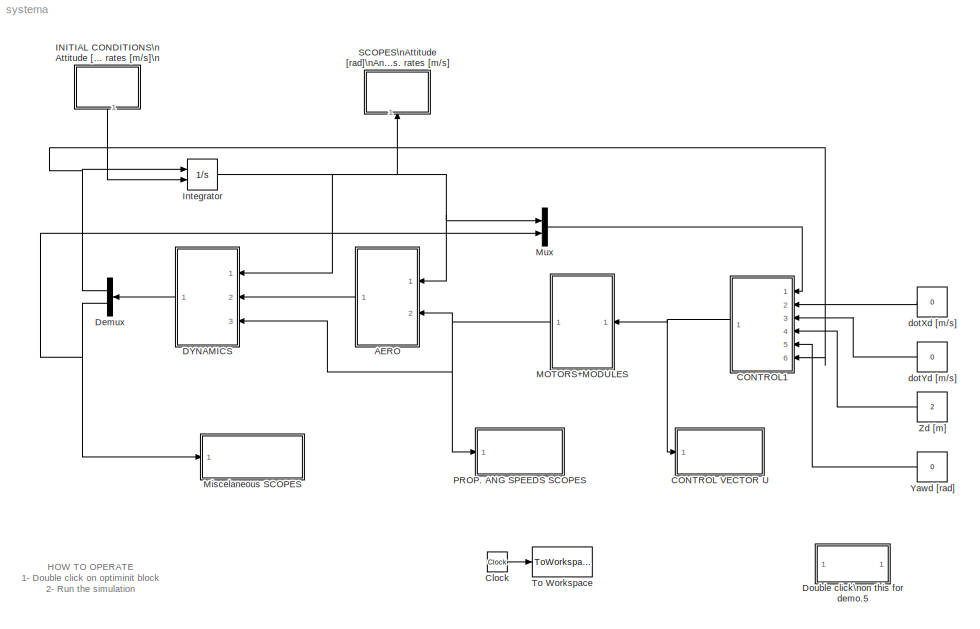
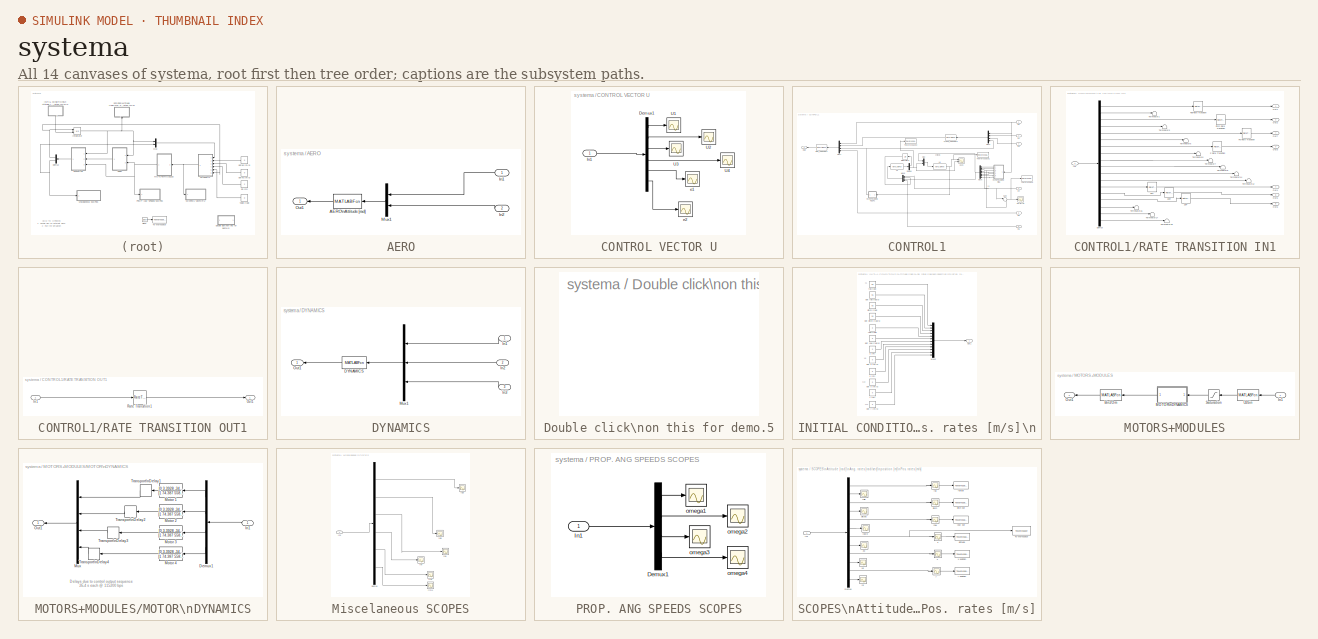
[diagram: thumbnail index - all 14 canvases of the model, root first then tree order]
MODEL systema
KIND model
BLOCK [SubSystem] AERO
  FunctionWithSeparateData = off
  MaskHideContents = off
  MinAlgLoopOccurrences = off
  Opaque = off
  Ports = [2, 1]
  PropExecContextOutsideSubsystem = off
  RTWSystemCode = Auto
  RequestExecContextInheritance = off
  SID = 1
BLOCK [MATLABFcn] AERO/AERO\nAttitude [rad]
  MATLABFcn = aero
  OutputDimensions = 24
  Ports = [1, 1]
  SID = 4
BLOCK [Inport] AERO/In1
  IconDisplay = Port number
  SID = 2
BLOCK [Inport] AERO/In2
  IconDisplay = Port number
  Port = 2
  SID = 3
BLOCK [Mux] AERO/Mux1
  DisplayOption = bar
  Inputs = 2
  Ports = [2, 1]
  SID = 5
BLOCK [Outport] AERO/Out1
  IconDisplay = Port number
  SID = 6
BLOCK [SubSystem] CONTROL VECTOR U
  FunctionWithSeparateData = off
  MaskHideContents = off
  MinAlgLoopOccurrences = off
  Opaque = off
  Ports = [1]
  PropExecContextOutsideSubsystem = off
  RTWSystemCode = Auto
  RequestExecContextInheritance = off
  SID = 42
BLOCK [Demux] CONTROL VECTOR U/Demux1
  Outputs = 6
  Ports = [1, 6]
  SID = 44
BLOCK [Inport] CONTROL VECTOR U/In1
  IconDisplay = Port number
  SID = 43
BLOCK [Scope] CONTROL VECTOR U/U1
  DataFormat = StructureWithTime
  Floating = off
  LimitDataPoints = off
  NumInputPorts = 1
  Ports = [1]
  SID = 45
  SampleTime = 0
  SaveName = ScopeData7
  ShowLegends = off
  TimeRange = 0.2082448343844286
  YMax = 5.84545
  YMin = 5.84505
  ZoomMode = xonly
BLOCK [Scope] CONTROL VECTOR U/U2
  DataFormat = StructureWithTime
  Floating = off
  LimitDataPoints = off
  NumInputPorts = 1
  Ports = [1]
  SID = 46
  SampleTime = 0
  SaveName = ScopeData8
  ShowLegends = off
  YMax = 0.4
  YMin = -0.6
  ZoomMode = xonly
BLOCK [Scope] CONTROL VECTOR U/U3
  DataFormat = StructureWithTime
  Floating = off
  LimitDataPoints = off
  NumInputPorts = 1
  Ports = [1]
  SID = 47
  SampleTime = 0
  SaveName = ScopeData9
  ShowLegends = off
  YMax = 0.35
  YMin = -0.65
BLOCK [Scope] CONTROL VECTOR U/U4
  DataFormat = StructureWithTime
  Floating = off
  LimitDataPoints = off
  NumInputPorts = 1
  Ports = [1]
  SID = 48
  SampleTime = 0
  SaveName = ScopeData14
  ShowLegends = off
  YMax = 150
  YMin = 0
BLOCK [Scope] CONTROL VECTOR U/e1
  DataFormat = StructureWithTime
  Floating = off
  LimitDataPoints = off
  NumInputPorts = 1
  Ports = [1]
  SID = 49
  SampleTime = 0
  SaveName = ScopeData11
  ShowLegends = off
  YMax = 150
  YMin = 0
BLOCK [Scope] CONTROL VECTOR U/e2
  DataFormat = StructureWithTime
  Floating = off
  LimitDataPoints = off
  NumInputPorts = 1
  Ports = [1]
  SID = 50
  SampleTime = 0
  SaveName = ScopeData12
  ShowLegends = off
  YMax = 150
  YMin = 0
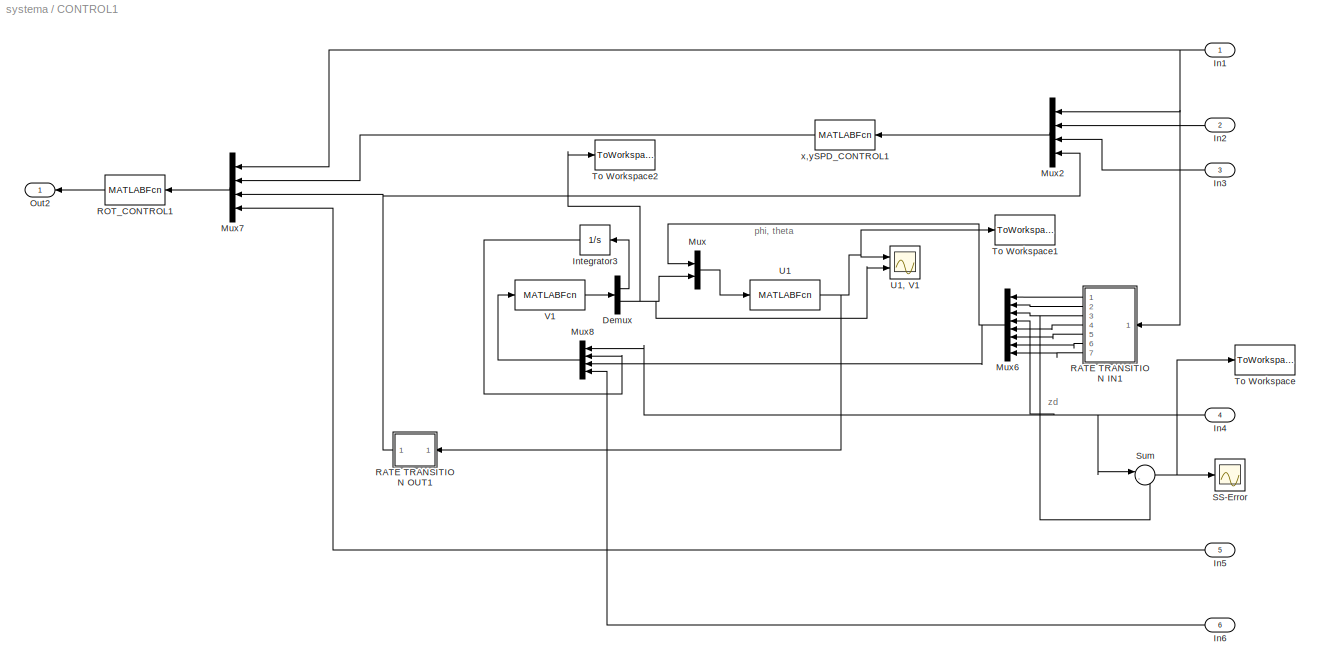
BLOCK [SubSystem] CONTROL1
  FunctionWithSeparateData = off
  MaskHideContents = off
  MinAlgLoopOccurrences = off
  Opaque = off
  Ports = [6, 1]
  PropExecContextOutsideSubsystem = off
  RTWSystemCode = Auto
  RequestExecContextInheritance = off
  SID = 242
BLOCK [Demux] CONTROL1/Demux
  DisplayOption = bar
  Outputs = 2
  Ports = [1, 2]
  SID = 291
BLOCK [Inport] CONTROL1/In1
  IconDisplay = Port number
  SID = 243
BLOCK [Inport] CONTROL1/In2
  IconDisplay = Port number
  Port = 2
  SID = 244
BLOCK [Inport] CONTROL1/In3
  IconDisplay = Port number
  Port = 3
  SID = 245
BLOCK [Inport] CONTROL1/In4
  IconDisplay = Port number
  Port = 4
  SID = 246
BLOCK [Inport] CONTROL1/In5
  IconDisplay = Port number
  Port = 5
  SID = 247
BLOCK [Inport] CONTROL1/In6
  IconDisplay = Port number
  Port = 6
  SID = 317
BLOCK [Integrator] CONTROL1/Integrator3
  Ports = [1, 1]
  SID = 289
BLOCK [Mux] CONTROL1/Mux
  DisplayOption = bar
  Inputs = 2
  Ports = [2, 1]
  SID = 250
BLOCK [Mux] CONTROL1/Mux2
  DisplayOption = bar
  Ports = [4, 1]
  SID = 251
BLOCK [Mux] CONTROL1/Mux6
  DisplayOption = bar
  Inputs = 8
  Ports = [8, 1]
  SID = 253
BLOCK [Mux] CONTROL1/Mux7
  DisplayOption = bar
  Ports = [4, 1]
  SID = 254
BLOCK [Mux] CONTROL1/Mux8
  DisplayOption = bar
  Ports = [4, 1]
  SID = 255
BLOCK [Outport] CONTROL1/Out2
  IconDisplay = Port number
  SID = 283
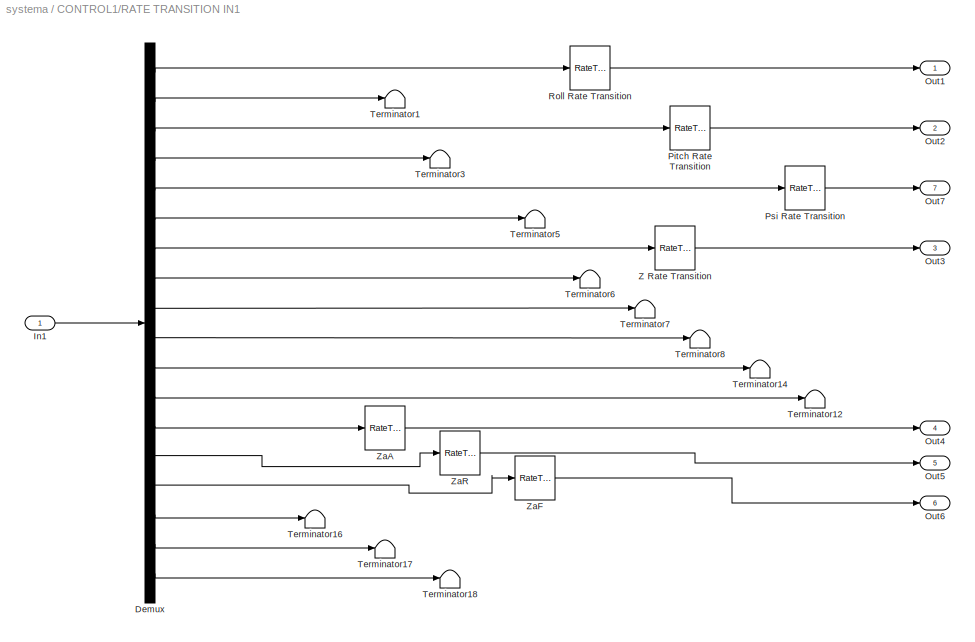
BLOCK [SubSystem] CONTROL1/RATE TRANSITION IN1
  FunctionWithSeparateData = off
  MaskHideContents = off
  MinAlgLoopOccurrences = off
  Opaque = off
  Ports = [1, 7]
  PropExecContextOutsideSubsystem = off
  RTWSystemCode = Auto
  RequestExecContextInheritance = off
  SID = 257
BLOCK [Demux] CONTROL1/RATE TRANSITION IN1/Demux
  Outputs = 18
  Ports = [1, 18]
  SID = 259
BLOCK [Inport] CONTROL1/RATE TRANSITION IN1/In1
  IconDisplay = Port number
  SID = 258
BLOCK [Outport] CONTROL1/RATE TRANSITION IN1/Out1
  IconDisplay = Port number
  SID = 272
BLOCK [Outport] CONTROL1/RATE TRANSITION IN1/Out2
  IconDisplay = Port number
  Port = 2
  SID = 273
BLOCK [Outport] CONTROL1/RATE TRANSITION IN1/Out3
  IconDisplay = Port number
  Port = 3
  SID = 274
BLOCK [Outport] CONTROL1/RATE TRANSITION IN1/Out4
  IconDisplay = Port number
  Port = 4
  SID = 297
BLOCK [Outport] CONTROL1/RATE TRANSITION IN1/Out5
  IconDisplay = Port number
  Port = 5
  SID = 300
BLOCK [Outport] CONTROL1/RATE TRANSITION IN1/Out6
  IconDisplay = Port number
  Port = 6
  SID = 302
BLOCK [Outport] CONTROL1/RATE TRANSITION IN1/Out7
  IconDisplay = Port number
  Port = 7
  SID = 316
BLOCK [RateTransition] CONTROL1/RATE TRANSITION IN1/Pitch Rate Transition
  Deterministic = off
  SID = 260
BLOCK [RateTransition] CONTROL1/RATE TRANSITION IN1/Psi Rate Transition
  Deterministic = off
  SID = 315
BLOCK [RateTransition] CONTROL1/RATE TRANSITION IN1/Roll Rate Transition
  Deterministic = off
  SID = 261
BLOCK [Terminator] CONTROL1/RATE TRANSITION IN1/Terminator1
  SID = 262
BLOCK [Terminator] CONTROL1/RATE TRANSITION IN1/Terminator12
  SID = 263
BLOCK [Terminator] CONTROL1/RATE TRANSITION IN1/Terminator14
  SID = 264
BLOCK [Terminator] CONTROL1/RATE TRANSITION IN1/Terminator16
  SID = 303
BLOCK [Terminator] CONTROL1/RATE TRANSITION IN1/Terminator17
  SID = 304
BLOCK [Terminator] CONTROL1/RATE TRANSITION IN1/Terminator18
  SID = 305
BLOCK [Terminator] CONTROL1/RATE TRANSITION IN1/Terminator3
  SID = 265
BLOCK [Terminator] CONTROL1/RATE TRANSITION IN1/Terminator5
  SID = 267
BLOCK [Terminator] CONTROL1/RATE TRANSITION IN1/Terminator6
  SID = 268
BLOCK [Terminator] CONTROL1/RATE TRANSITION IN1/Terminator7
  SID = 269
BLOCK [Terminator] CONTROL1/RATE TRANSITION IN1/Terminator8
  SID = 270
BLOCK [RateTransition] CONTROL1/RATE TRANSITION IN1/Z Rate Transition
  Deterministic = off
  SID = 271
BLOCK [RateTransition] CONTROL1/RATE TRANSITION IN1/ZaA
  Deterministic = off
  SID = 296
BLOCK [RateTransition] CONTROL1/RATE TRANSITION IN1/ZaF
  Deterministic = off
  SID = 301
BLOCK [RateTransition] CONTROL1/RATE TRANSITION IN1/ZaR
  Deterministic = off
  SID = 299
BLOCK [SubSystem] CONTROL1/RATE TRANSITION OUT1
  FunctionWithSeparateData = off
  MaskHideContents = off
  MinAlgLoopOccurrences = off
  Opaque = off
  Ports = [1, 1]
  PropExecContextOutsideSubsystem = off
  RTWSystemCode = Auto
  RequestExecContextInheritance = off
  SID = 275
BLOCK [Inport] CONTROL1/RATE TRANSITION OUT1/In1
  IconDisplay = Port number
  SID = 276
BLOCK [Outport] CONTROL1/RATE TRANSITION OUT1/Out1
  IconDisplay = Port number
  SID = 278
BLOCK [RateTransition] CONTROL1/RATE TRANSITION OUT1/Rate Transition1
  Deterministic = off
  SID = 277
BLOCK [MATLABFcn] CONTROL1/ROT_CONTROL1
  MATLABFcn = back_rot_control
  OutputDimensions = 6
  Ports = [1, 1]
  SID = 279
BLOCK [Scope] CONTROL1/SS-Error
  DataFormat = StructureWithTime
  Floating = off
  NumInputPorts = 1
  Ports = [1]
  SID = 310
  SampleTime = 0
  SaveName = ScopeData6
  ShowLegends = off
  TimeRange = 15
  YMax = 0
  YMin = -0.375
  ZoomMode = yonly
BLOCK [Sum] CONTROL1/Sum
  IconShape = round
  InputSameDT = off
  Inputs = |-+
  OutDataTypeStr = Inherit: Inherit via internal rule
  Ports = [2, 1]
  SID = 309
  SaturateOnIntegerOverflow = off
BLOCK [ToWorkspace] CONTROL1/To Workspace
  MaxDataPoints = inf
  Ports = [1]
  SID = 311
  SampleTime = -1
  VariableName = Ez
BLOCK [ToWorkspace] CONTROL1/To Workspace1
  MaxDataPoints = inf
  Ports = [1]
  SID = 312
  SampleTime = -1
  VariableName = U1
BLOCK [ToWorkspace] CONTROL1/To Workspace2
  MaxDataPoints = inf
  Ports = [1]
  SID = 313
  SampleTime = -1
  VariableName = V1
BLOCK [MATLABFcn] CONTROL1/U1
  MATLABFcn = U1
  OutputDimensions = 1
  Ports = [1, 1]
  SID = 280
BLOCK [Scope] CONTROL1/U1, V1
  DataFormat = StructureWithTime
  Floating = off
  NumInputPorts = 2
  Ports = [2]
  SID = 292
  SampleTime = 0
  SaveName = ScopeData4
  ShowLegends = off
  TimeRange = 15
  YMax = 5.85~1.25
  YMin = 5.575~0.75
  ZoomMode = yonly
BLOCK [MATLABFcn] CONTROL1/V1
  MATLABFcn = V1
  OutputDimensions = 2
  Ports = [1, 1]
  SID = 281
BLOCK [MATLABFcn] CONTROL1/x,ySPD_CONTROL1
  MATLABFcn = spd_control
  OutputDimensions = 2
  Ports = [1, 1]
  SID = 282
BLOCK [Clock] Clock
  SID = 51
BLOCK [SubSystem] DYNAMICS
  FunctionWithSeparateData = off
  MaskHideContents = off
  MinAlgLoopOccurrences = off
  Opaque = off
  Ports = [3, 1]
  PropExecContextOutsideSubsystem = off
  RTWSystemCode = Auto
  RequestExecContextInheritance = off
  SID = 102
BLOCK [MATLABFcn] DYNAMICS/DYNAMICS
  MATLABFcn = dinamica
  OutputDimensions = 18
  Ports = [1, 1]
  SID = 106
BLOCK [Inport] DYNAMICS/In1
  IconDisplay = Port number
  SID = 103
BLOCK [Inport] DYNAMICS/In2
  IconDisplay = Port number
  Port = 2
  SID = 104
BLOCK [Inport] DYNAMICS/In3
  IconDisplay = Port number
  Port = 3
  SID = 105
BLOCK [Mux] DYNAMICS/Mux1
  DisplayOption = bar
  Inputs = 3
  Ports = [3, 1]
  SID = 107
BLOCK [Outport] DYNAMICS/Out1
  IconDisplay = Port number
  SID = 108
BLOCK [Demux] Demux
  Outputs = 2
  Ports = [1, 2]
  SID = 109
BLOCK [SubSystem] Double click\non this for demo.5
  FunctionWithSeparateData = off
  MaskHideContents = off
  MinAlgLoopOccurrences = off
  Opaque = off
  OpenFcn = optsiminit
  Ports = []
  PropExecContextOutsideSubsystem = off
  RTWSystemCode = Auto
  RequestExecContextInheritance = off
  SID = 110
BLOCK [SubSystem] INITIAL CONDITIONS\nAttitude [rad]\nAng. rates [rad//sec]\nposition [m]\nPos. rates [m//s]\n
  FunctionWithSeparateData = off
  MaskHideContents = off
  MinAlgLoopOccurrences = off
  Opaque = off
  Ports = [0, 1]
  PropExecContextOutsideSubsystem = off
  RTWSystemCode = Auto
  RequestExecContextInheritance = off
  SID = 133
BLOCK [Mux] INITIAL CONDITIONS\nAttitude [rad]\nAng. rates [rad//sec]\nposition [m]\nPos. rates [m//s]\n/Mux2
  DisplayOption = bar
  Inputs = 12
  Ports = [12, 1]
  SID = 134
BLOCK [Outport] INITIAL CONDITIONS\nAttitude [rad]\nAng. rates [rad//sec]\nposition [m]\nPos. rates [m//s]\n/Out1
  IconDisplay = Port number
  SID = 147
BLOCK [Constant] INITIAL CONDITIONS\nAttitude [rad]\nAng. rates [rad//sec]\nposition [m]\nPos. rates [m//s]\n/dot pitch [rad//s]
  SID = 135
  Value = 0.5
BLOCK [Constant] INITIAL CONDITIONS\nAttitude [rad]\nAng. rates [rad//sec]\nposition [m]\nPos. rates [m//s]\n/dot roll [rad//s]
  SID = 136
  Value = 0.5
BLOCK [Constant] INITIAL CONDITIONS\nAttitude [rad]\nAng. rates [rad//sec]\nposition [m]\nPos. rates [m//s]\n/dot x [m//s]
  SID = 137
  Value = 0
BLOCK [Constant] INITIAL CONDITIONS\nAttitude [rad]\nAng. rates [rad//sec]\nposition [m]\nPos. rates [m//s]\n/dot y [m//s]
  SID = 138
  Value = 0
BLOCK [Constant] INITIAL CONDITIONS\nAttitude [rad]\nAng. rates [rad//sec]\nposition [m]\nPos. rates [m//s]\n/dot yaw [rad//s]
  SID = 139
  Value = 0
BLOCK [Constant] INITIAL CONDITIONS\nAttitude [rad]\nAng. rates [rad//sec]\nposition [m]\nPos. rates [m//s]\n/dot z  [m//s]
  SID = 140
  Value = 0
BLOCK [Constant] INITIAL CONDITIONS\nAttitude [rad]\nAng. rates [rad//sec]\nposition [m]\nPos. rates [m//s]\n/pitch [rad]
  SID = 141
  Value = 0.5
BLOCK [Constant] INITIAL CONDITIONS\nAttitude [rad]\nAng. rates [rad//sec]\nposition [m]\nPos. rates [m//s]\n/roll [rad]
  SID = 142
  Value = 0.5
BLOCK [Constant] INITIAL CONDITIONS\nAttitude [rad]\nAng. rates [rad//sec]\nposition [m]\nPos. rates [m//s]\n/x [m]
  SID = 143
  Value = 0
BLOCK [Constant] INITIAL CONDITIONS\nAttitude [rad]\nAng. rates [rad//sec]\nposition [m]\nPos. rates [m//s]\n/y [m]
  SID = 144
  Value = 0
BLOCK [Constant] INITIAL CONDITIONS\nAttitude [rad]\nAng. rates [rad//sec]\nposition [m]\nPos. rates [m//s]\n/yaw [rad]
  SID = 145
  Value = 0
BLOCK [Constant] INITIAL CONDITIONS\nAttitude [rad]\nAng. rates [rad//sec]\nposition [m]\nPos. rates [m//s]\n/z [m]
  SID = 146
  Value = 0
BLOCK [Integrator] Integrator
  InitialConditionSource = external
  Ports = [2, 1]
  SID = 152
BLOCK [SubSystem] MOTORS+MODULES
  FunctionWithSeparateData = off
  MaskHideContents = off
  MinAlgLoopOccurrences = off
  Opaque = off
  Ports = [1, 1]
  PropExecContextOutsideSubsystem = off
  RTWSystemCode = Auto
  RequestExecContextInheritance = off
  SID = 153
BLOCK [MATLABFcn] MOTORS+MODULES/Bin2Om
  MATLABFcn = bin2Om
  OutputDimensions = 4
  OutputSignalType = real
  Ports = [1, 1]
  SID = 155
BLOCK [Inport] MOTORS+MODULES/In1
  IconDisplay = Port number
  SID = 154
BLOCK [SubSystem] MOTORS+MODULES/MOTOR\nDYNAMICS
  FunctionWithSeparateData = off
  MaskHideContents = off
  MinAlgLoopOccurrences = off
  Opaque = off
  Ports = [1, 1]
  PropExecContextOutsideSubsystem = off
  RTWSystemCode = Auto
  RequestExecContextInheritance = off
  SID = 156
BLOCK [Demux] MOTORS+MODULES/MOTOR\nDYNAMICS/Demux1
  Ports = [1, 4]
  SID = 158
BLOCK [Inport] MOTORS+MODULES/MOTOR\nDYNAMICS/In1
  IconDisplay = Port number
  SID = 157
BLOCK [TransferFcn] MOTORS+MODULES/MOTOR\nDYNAMICS/Motor 1
  Denominator = [1 74.387 5589.7 42107]
  Numerator = [0 3.3928 -340.09 39451]
  SID = 159
BLOCK [TransferFcn] MOTORS+MODULES/MOTOR\nDYNAMICS/Motor 2
  Denominator = [1 74.387 5589.7 42107]
  Numerator = [0 3.3928 -340.09 39451]
  SID = 160
BLOCK [TransferFcn] MOTORS+MODULES/MOTOR\nDYNAMICS/Motor 3
  Denominator = [1 74.387 5589.7 42107]
  Numerator = [0 3.3928 -340.09 39451]
  SID = 161
BLOCK [TransferFcn] MOTORS+MODULES/MOTOR\nDYNAMICS/Motor 4
  Denominator = [1 74.387 5589.7 42107]
  Numerator = [0 3.3928 -340.09 39451]
  SID = 162
BLOCK [Mux] MOTORS+MODULES/MOTOR\nDYNAMICS/Mux
  DisplayOption = bar
  Ports = [4, 1]
  SID = 163
BLOCK [Outport] MOTORS+MODULES/MOTOR\nDYNAMICS/Out1
  IconDisplay = Port number
  SID = 168
BLOCK [TransportDelay] MOTORS+MODULES/MOTOR\nDYNAMICS/Transport\nDelay1
  DelayTime = 2E-4
  Ports = [1, 1]
  SID = 164
BLOCK [TransportDelay] MOTORS+MODULES/MOTOR\nDYNAMICS/Transport\nDelay2
  DelayTime = 4E-4
  Ports = [1, 1]
  SID = 165
BLOCK [TransportDelay] MOTORS+MODULES/MOTOR\nDYNAMICS/Transport\nDelay3
  DelayTime = 6E-4
  Ports = [1, 1]
  SID = 166
BLOCK [TransportDelay] MOTORS+MODULES/MOTOR\nDYNAMICS/Transport\nDelay4
  DelayTime = 8E-4
  Ports = [1, 1]
  SID = 167
BLOCK [Outport] MOTORS+MODULES/Out1
  IconDisplay = Port number
  SID = 172
BLOCK [Saturate] MOTORS+MODULES/Saturation
  InputPortMap = u0
  LowerLimit = 10
  Ports = [1, 1]
  SID = 170
  UpperLimit = 125
BLOCK [MATLABFcn] MOTORS+MODULES/U2bin
  MATLABFcn = U2bin
  OutputDimensions = 4
  OutputSignalType = real
  Ports = [1, 1]
  SID = 171
BLOCK [SubSystem] Miscelaneous SCOPES
  FunctionWithSeparateData = off
  MaskHideContents = off
  MinAlgLoopOccurrences = off
  Opaque = off
  Ports = [1]
  PropExecContextOutsideSubsystem = off
  RTWSystemCode = Auto
  RequestExecContextInheritance = off
  SID = 173
BLOCK [Demux] Miscelaneous SCOPES/Demux
  Outputs = 6
  Ports = [1, 6]
  SID = 175
BLOCK [Inport] Miscelaneous SCOPES/In1
  IconDisplay = Port number
  PortDimensions = 6
  SID = 174
BLOCK [Scope] Miscelaneous SCOPES/raa
  DataFormat = StructureWithTime
  Floating = off
  LimitDataPoints = off
  NumInputPorts = 1
  Ports = [1]
  SID = 176
  SampleTime = 0
  SaveName = ScopeData16
  ShowLegends = off
  TimeRange = 18
  YMax = 200
  YMin = -200
BLOCK [Scope] Miscelaneous SCOPES/rgb
  DataFormat = StructureWithTime
  Floating = off
  LimitDataPoints = off
  NumInputPorts = 1
  Ports = [1]
  SID = 177
  SampleTime = 0
  SaveName = ScopeData14
  ShowLegends = off
  YMax = -0.05
  YMin = -0.25
BLOCK [Scope] Miscelaneous SCOPES/rgp
  DataFormat = StructureWithTime
  Floating = off
  LimitDataPoints = off
  NumInputPorts = 1
  Ports = [1]
  SID = 178
  SampleTime = 0
  SaveName = ScopeData15
  ShowLegends = off
  YMax = 2250
  YMin = -2250
BLOCK [Scope] Miscelaneous SCOPES/rhf
  DataFormat = StructureWithTime
  Floating = off
  LimitDataPoints = off
  NumInputPorts = 1
  Ports = [1]
  SID = 179
  SampleTime = 0
  SaveName = ScopeData18
  ShowLegends = off
  TimeRange = 10
  YMax = -107.25
  YMin = -110.5
BLOCK [Scope] Miscelaneous SCOPES/rrm
  DataFormat = StructureWithTime
  Floating = off
  LimitDataPoints = off
  NumInputPorts = 1
  Ports = [1]
  SID = 180
  SampleTime = 0
  SaveName = ScopeData25
  ShowLegends = off
  TimeRange = 5
  YMax = 0
  YMin = -4.75e-015
BLOCK [Scope] Miscelaneous SCOPES/rrm1
  DataFormat = StructureWithTime
  Floating = off
  LimitDataPoints = off
  NumInputPorts = 1
  Ports = [1]
  SID = 181
  SampleTime = 0
  SaveName = ScopeData3
  ShowLegends = off
  TimeRange = 5
  YMax = 0
  YMin = -4.75e-015
BLOCK [Mux] Mux
  DisplayOption = bar
  Inputs = 2
  Ports = [2, 1]
  SID = 295
BLOCK [SubSystem] PROP. ANG SPEEDS SCOPES
  FunctionWithSeparateData = off
  MaskHideContents = off
  MinAlgLoopOccurrences = off
  Opaque = off
  Ports = [1]
  PropExecContextOutsideSubsystem = off
  RTWSystemCode = Auto
  RequestExecContextInheritance = off
  SID = 182
BLOCK [Demux] PROP. ANG SPEEDS SCOPES/Demux1
  Ports = [1, 4]
  SID = 184
BLOCK [Inport] PROP. ANG SPEEDS SCOPES/In1
  IconDisplay = Port number
  SID = 183
BLOCK [Scope] PROP. ANG SPEEDS SCOPES/omega1
  DataFormat = StructureWithTime
  Floating = off
  LimitDataPoints = off
  NumInputPorts = 1
  Ports = [1]
  SID = 185
  SampleTime = 0
  SaveName = ScopeData7
  ShowLegends = off
  TimeRange = 3.5
  YMax = 144.104
  YMin = 144.101
BLOCK [Scope] PROP. ANG SPEEDS SCOPES/omega2
  DataFormat = StructureWithTime
  Floating = off
  LimitDataPoints = off
  NumInputPorts = 1
  Ports = [1]
  SID = 186
  SampleTime = 0
  SaveName = ScopeData8
  ShowLegends = off
  YMax = 147.5
  YMin = 142.5
BLOCK [Scope] PROP. ANG SPEEDS SCOPES/omega3
  DataFormat = StructureWithTime
  Floating = off
  LimitDataPoints = off
  NumInputPorts = 1
  Ports = [1]
  SID = 187
  SampleTime = 0
  SaveName = ScopeData9
  ShowLegends = off
  YMax = 150
  YMin = 0
BLOCK [Scope] PROP. ANG SPEEDS SCOPES/omega4
  DataFormat = StructureWithTime
  Floating = off
  LimitDataPoints = off
  NumInputPorts = 1
  Ports = [1]
  SID = 188
  SampleTime = 0
  SaveName = ScopeData14
  ShowLegends = off
  YMax = 150
  YMin = 0
BLOCK [SubSystem] SCOPES\nAttitude [rad]\nAng. rates [rad//sec]\nposition [m]\nPos. rates [m//s]
  FunctionWithSeparateData = off
  MaskHideContents = off
  MinAlgLoopOccurrences = off
  Opaque = off
  Ports = [1]
  PropExecContextOutsideSubsystem = off
  RTWSystemCode = Auto
  RequestExecContextInheritance = off
  SID = 189
BLOCK [Demux] SCOPES\nAttitude [rad]\nAng. rates [rad//sec]\nposition [m]\nPos. rates [m//s]/Demux
  Outputs = 12
  Ports = [1, 12]
  SID = 191
BLOCK [Inport] SCOPES\nAttitude [rad]\nAng. rates [rad//sec]\nposition [m]\nPos. rates [m//s]/In1
  IconDisplay = Port number
  SID = 190
BLOCK [ToWorkspace] SCOPES\nAttitude [rad]\nAng. rates [rad//sec]\nposition [m]\nPos. rates [m//s]/To Workspace
  MaxDataPoints = inf
  Ports = [1]
  SID = 314
  SampleTime = -1
  SaveFormat = Timeseries
  VariableName = Z
BLOCK [ToWorkspace] SCOPES\nAttitude [rad]\nAng. rates [rad//sec]\nposition [m]\nPos. rates [m//s]/altitude
  MaxDataPoints = inf
  Ports = [1]
  SID = 192
  SampleTime = -1
  VariableName = z
BLOCK [Scope] SCOPES\nAttitude [rad]\nAng. rates [rad//sec]\nposition [m]\nPos. rates [m//s]/pitch
  DataFormat = StructureWithTime
  Floating = off
  LimitDataPoints = off
  NumInputPorts = 1
  Ports = [1]
  SID = 193
  SampleTime = 0
  SaveName = ScopeData1
  ShowLegends = off
  TimeRange = 4
  YMax = 0.16
  YMin = -0.08
BLOCK [ToWorkspace] SCOPES\nAttitude [rad]\nAng. rates [rad//sec]\nposition [m]\nPos. rates [m//s]/pitch out
  MaxDataPoints = inf
  Ports = [1]
  SID = 194
  SampleTime = -1
  VariableName = pitch
BLOCK [Scope] SCOPES\nAttitude [rad]\nAng. rates [rad//sec]\nposition [m]\nPos. rates [m//s]/pitchd
  DataFormat = StructureWithTime
  Floating = off
  LimitDataPoints = off
  NumInputPorts = 1
  Ports = [1]
  SID = 195
  SampleTime = 0
  SaveName = ScopeData15
  ShowLegends = off
  YMax = 1.75
  YMin = -1.75
BLOCK [Scope] SCOPES\nAttitude [rad]\nAng. rates [rad//sec]\nposition [m]\nPos. rates [m//s]/roll
  DataFormat = StructureWithTime
  Floating = off
  LimitDataPoints = off
  NumInputPorts = 1
  Ports = [1]
  SID = 196
  SampleTime = 0
  ShowLegends = off
  TimeRange = 0.25
  YMax = 0.005
  YMin = -0.008
BLOCK [ToWorkspace] SCOPES\nAttitude [rad]\nAng. rates [rad//sec]\nposition [m]\nPos. rates [m//s]/roll out
  MaxDataPoints = inf
  Ports = [1]
  SID = 197
  SampleTime = -1
  VariableName = roll
BLOCK [Scope] SCOPES\nAttitude [rad]\nAng. rates [rad//sec]\nposition [m]\nPos. rates [m//s]/rolld
  DataFormat = StructureWithTime
  Floating = off
  LimitDataPoints = off
  NumInputPorts = 1
  Ports = [1]
  SID = 198
  SampleTime = 0
  SaveName = ScopeData14
  ShowLegends = off
  TimeRange = 7
  YMax = 0.125
  YMin = -0.15
BLOCK [Scope] SCOPES\nAttitude [rad]\nAng. rates [rad//sec]\nposition [m]\nPos. rates [m//s]/x
  DataFormat = StructureWithTime
  Floating = off
  LimitDataPoints = off
  NumInputPorts = 1
  Ports = [1]
  SID = 199
  SampleTime = 0
  SaveName = ScopeData24
  ShowLegends = off
  TimeRange = 5
  YMax = 1
  YMin = -1
BLOCK [ToWorkspace] SCOPES\nAttitude [rad]\nAng. rates [rad//sec]\nposition [m]\nPos. rates [m//s]/x position
  MaxDataPoints = inf
  Ports = [1]
  SID = 200
  SampleTime = -1
  VariableName = x
BLOCK [Scope] SCOPES\nAttitude [rad]\nAng. rates [rad//sec]\nposition [m]\nPos. rates [m//s]/xd
  DataFormat = StructureWithTime
  Floating = off
  LimitDataPoints = off
  NumInputPorts = 1
  Ports = [1]
  SID = 201
  SampleTime = 0
  SaveName = ScopeData25
  ShowLegends = off
  TimeRange = 5
  YMax = 0
  YMin = -4.75e-015
BLOCK [Scope] SCOPES\nAttitude [rad]\nAng. rates [rad//sec]\nposition [m]\nPos. rates [m//s]/y
  DataFormat = StructureWithTime
  Floating = off
  LimitDataPoints = off
  NumInputPorts = 1
  Ports = [1]
  SID = 202
  SampleTime = 0
  SaveName = ScopeData26
  ShowLegends = off
  TimeRange = 5
  YMax = 1
  YMin = -1
  ZoomMode = yonly
BLOCK [ToWorkspace] SCOPES\nAttitude [rad]\nAng. rates [rad//sec]\nposition [m]\nPos. rates [m//s]/y position
  MaxDataPoints = inf
  Ports = [1]
  SID = 203
  SampleTime = -1
  VariableName = y
BLOCK [Scope] SCOPES\nAttitude [rad]\nAng. rates [rad//sec]\nposition [m]\nPos. rates [m//s]/yaw
  DataFormat = StructureWithTime
  Floating = off
  LimitDataPoints = off
  NumInputPorts = 1
  Ports = [1]
  SID = 204
  SampleTime = 0
  SaveName = ScopeData2
  ShowLegends = off
  TimeRange = 5
  YMax = 0
  YMin = -175
BLOCK [ToWorkspace] SCOPES\nAttitude [rad]\nAng. rates [rad//sec]\nposition [m]\nPos. rates [m//s]/yaw out
  MaxDataPoints = inf
  Ports = [1]
  SID = 205
  SampleTime = -1
  VariableName = yaw
BLOCK [Scope] SCOPES\nAttitude [rad]\nAng. rates [rad//sec]\nposition [m]\nPos. rates [m//s]/yawd
  DataFormat = StructureWithTime
  Floating = off
  LimitDataPoints = off
  NumInputPorts = 1
  Ports = [1]
  SID = 206
  SampleTime = 0
  SaveName = ScopeData16
  ShowLegends = off
  TimeRange = 18
  YMax = 0.15
  YMin = -0.275
BLOCK [Scope] SCOPES\nAttitude [rad]\nAng. rates [rad//sec]\nposition [m]\nPos. rates [m//s]/yd
  DataFormat = StructureWithTime
  Floating = off
  LimitDataPoints = off
  NumInputPorts = 1
  Ports = [1]
  SID = 207
  SampleTime = 0
  SaveName = ScopeData27
  ShowLegends = off
  TimeRange = 5
  YMax = -141.75
  YMin = -143.75
BLOCK [Scope] SCOPES\nAttitude [rad]\nAng. rates [rad//sec]\nposition [m]\nPos. rates [m//s]/z
  DataFormat = StructureWithTime
  Floating = off
  LimitDataPoints = off
  NumInputPorts = 1
  Ports = [1]
  SID = 208
  SampleTime = 0
  SaveName = ScopeData17
  ShowLegends = off
  TimeRange = 15
  YMax = 1.075
  YMin = 0.575
  ZoomMode = yonly
BLOCK [Scope] SCOPES\nAttitude [rad]\nAng. rates [rad//sec]\nposition [m]\nPos. rates [m//s]/zd
  DataFormat = StructureWithTime
  Floating = off
  LimitDataPoints = off
  NumInputPorts = 1
  Ports = [1]
  SID = 209
  SampleTime = 0
  SaveName = ScopeData18
  ShowLegends = off
  TimeRange = 10
  YMax = -107.25
  YMin = -110.5
BLOCK [ToWorkspace] To Workspace
  MaxDataPoints = inf
  Ports = [1]
  SID = 210
  SampleTime = -1
  VariableName = time
BLOCK [Constant] Yawd [rad]
  SID = 211
  Value = 0
BLOCK [Constant] Zd [m]
  SID = 212
  Value = 2
  VectorParams1D = off
BLOCK [Constant] dotXd [m//s]
  SID = 213
  Value = 0
BLOCK [Constant] dotYd [m//s]
  SID = 214
  Value = 0
ANNOTATION (root): \nHOW TO OPERATE\n1- Double click on optiminit block\n2- Run the simulation
ANNOTATION CONTROL1: phi, theta
ANNOTATION CONTROL1: zd
ANNOTATION INITIAL CONDITIONS\nAttitude [rad]\nAng. rates [rad//sec]\nposition [m]\nPos. rates [m//s]\n: x1
ANNOTATION INITIAL CONDITIONS\nAttitude [rad]\nAng. rates [rad//sec]\nposition [m]\nPos. rates [m//s]\n: x10
ANNOTATION INITIAL CONDITIONS\nAttitude [rad]\nAng. rates [rad//sec]\nposition [m]\nPos. rates [m//s]\n: x12
ANNOTATION INITIAL CONDITIONS\nAttitude [rad]\nAng. rates [rad//sec]\nposition [m]\nPos. rates [m//s]\n: x8
ANNOTATION MOTORS+MODULES/MOTOR\nDYNAMICS: Delays due to control output sequence\n2E-4 s each @ 115200 bps
LINE AERO/AERO\nAttitude [rad]:1 -> AERO/Out1:1
LINE AERO/In1:1 -> AERO/Mux1:1
LINE AERO/In2:1 -> AERO/Mux1:2
LINE AERO/Mux1:1 -> AERO/AERO\nAttitude [rad]:1
LINE AERO:1 -> DYNAMICS:2
LINE CONTROL VECTOR U/Demux1:1 -> CONTROL VECTOR U/U1:1
LINE CONTROL VECTOR U/Demux1:2 -> CONTROL VECTOR U/U2:1
LINE CONTROL VECTOR U/Demux1:3 -> CONTROL VECTOR U/U3:1
LINE CONTROL VECTOR U/Demux1:4 -> CONTROL VECTOR U/U4:1
LINE CONTROL VECTOR U/Demux1:5 -> CONTROL VECTOR U/e1:1
LINE CONTROL VECTOR U/Demux1:6 -> CONTROL VECTOR U/e2:1
LINE CONTROL VECTOR U/In1:1 -> CONTROL VECTOR U/Demux1:1
LINE CONTROL1/Demux:1 -> CONTROL1/Integrator3:1
NET CONTROL1/Demux:2 -> CONTROL1/Mux:2, CONTROL1/To Workspace2:1, CONTROL1/U1, V1:2
NET CONTROL1/In1:1 -> CONTROL1/Mux2:1, CONTROL1/Mux7:1, CONTROL1/RATE TRANSITION IN1:1
LINE CONTROL1/In2:1 -> CONTROL1/Mux2:2
LINE CONTROL1/In3:1 -> CONTROL1/Mux2:3
NET CONTROL1/In4:1 -> CONTROL1/Mux6:4, CONTROL1/Mux8:1, CONTROL1/Sum:1
LINE CONTROL1/In5:1 -> CONTROL1/Mux7:4
LINE CONTROL1/In6:1 -> CONTROL1/Mux8:4
LINE CONTROL1/Integrator3:1 -> CONTROL1/Mux8:2
LINE CONTROL1/Mux2:1 -> CONTROL1/x,ySPD_CONTROL1:1
NET CONTROL1/Mux6:1 -> CONTROL1/Mux8:3, CONTROL1/Mux:1
LINE CONTROL1/Mux7:1 -> CONTROL1/ROT_CONTROL1:1
LINE CONTROL1/Mux8:1 -> CONTROL1/V1:1
LINE CONTROL1/Mux:1 -> CONTROL1/U1:1
LINE CONTROL1/RATE TRANSITION IN1/Demux:1 -> CONTROL1/RATE TRANSITION IN1/Roll Rate Transition:1
LINE CONTROL1/RATE TRANSITION IN1/Demux:10 -> CONTROL1/RATE TRANSITION IN1/Terminator8:1
LINE CONTROL1/RATE TRANSITION IN1/Demux:11 -> CONTROL1/RATE TRANSITION IN1/Terminator14:1
LINE CONTROL1/RATE TRANSITION IN1/Demux:12 -> CONTROL1/RATE TRANSITION IN1/Terminator12:1
LINE CONTROL1/RATE TRANSITION IN1/Demux:13 -> CONTROL1/RATE TRANSITION IN1/ZaA:1
LINE CONTROL1/RATE TRANSITION IN1/Demux:14 -> CONTROL1/RATE TRANSITION IN1/ZaR:1
LINE CONTROL1/RATE TRANSITION IN1/Demux:15 -> CONTROL1/RATE TRANSITION IN1/ZaF:1
LINE CONTROL1/RATE TRANSITION IN1/Demux:16 -> CONTROL1/RATE TRANSITION IN1/Terminator16:1
LINE CONTROL1/RATE TRANSITION IN1/Demux:17 -> CONTROL1/RATE TRANSITION IN1/Terminator17:1
LINE CONTROL1/RATE TRANSITION IN1/Demux:18 -> CONTROL1/RATE TRANSITION IN1/Terminator18:1
LINE CONTROL1/RATE TRANSITION IN1/Demux:2 -> CONTROL1/RATE TRANSITION IN1/Terminator1:1
LINE CONTROL1/RATE TRANSITION IN1/Demux:3 -> CONTROL1/RATE TRANSITION IN1/Pitch Rate Transition:1
LINE CONTROL1/RATE TRANSITION IN1/Demux:4 -> CONTROL1/RATE TRANSITION IN1/Terminator3:1
LINE CONTROL1/RATE TRANSITION IN1/Demux:5 -> CONTROL1/RATE TRANSITION IN1/Psi Rate Transition:1
LINE CONTROL1/RATE TRANSITION IN1/Demux:6 -> CONTROL1/RATE TRANSITION IN1/Terminator5:1
LINE CONTROL1/RATE TRANSITION IN1/Demux:7 -> CONTROL1/RATE TRANSITION IN1/Z Rate Transition:1
LINE CONTROL1/RATE TRANSITION IN1/Demux:8 -> CONTROL1/RATE TRANSITION IN1/Terminator6:1
LINE CONTROL1/RATE TRANSITION IN1/Demux:9 -> CONTROL1/RATE TRANSITION IN1/Terminator7:1
LINE CONTROL1/RATE TRANSITION IN1/In1:1 -> CONTROL1/RATE TRANSITION IN1/Demux:1
LINE CONTROL1/RATE TRANSITION IN1/Pitch Rate Transition:1 -> CONTROL1/RATE TRANSITION IN1/Out2:1
LINE CONTROL1/RATE TRANSITION IN1/Psi Rate Transition:1 -> CONTROL1/RATE TRANSITION IN1/Out7:1
LINE CONTROL1/RATE TRANSITION IN1/Roll Rate Transition:1 -> CONTROL1/RATE TRANSITION IN1/Out1:1
LINE CONTROL1/RATE TRANSITION IN1/Z Rate Transition:1 -> CONTROL1/RATE TRANSITION IN1/Out3:1
LINE CONTROL1/RATE TRANSITION IN1/ZaA:1 -> CONTROL1/RATE TRANSITION IN1/Out4:1
LINE CONTROL1/RATE TRANSITION IN1/ZaF:1 -> CONTROL1/RATE TRANSITION IN1/Out6:1
LINE CONTROL1/RATE TRANSITION IN1/ZaR:1 -> CONTROL1/RATE TRANSITION IN1/Out5:1
LINE CONTROL1/RATE TRANSITION IN1:1 -> CONTROL1/Mux6:1
LINE CONTROL1/RATE TRANSITION IN1:2 -> CONTROL1/Mux6:2
NET CONTROL1/RATE TRANSITION IN1:3 -> CONTROL1/Mux6:3, CONTROL1/Sum:2
LINE CONTROL1/RATE TRANSITION IN1:4 -> CONTROL1/Mux6:5
LINE CONTROL1/RATE TRANSITION IN1:5 -> CONTROL1/Mux6:6
LINE CONTROL1/RATE TRANSITION IN1:6 -> CONTROL1/Mux6:7
LINE CONTROL1/RATE TRANSITION IN1:7 -> CONTROL1/Mux6:8
LINE CONTROL1/RATE TRANSITION OUT1/In1:1 -> CONTROL1/RATE TRANSITION OUT1/Rate Transition1:1
LINE CONTROL1/RATE TRANSITION OUT1/Rate Transition1:1 -> CONTROL1/RATE TRANSITION OUT1/Out1:1
NET CONTROL1/RATE TRANSITION OUT1:1 -> CONTROL1/Mux2:4, CONTROL1/Mux7:3
LINE CONTROL1/ROT_CONTROL1:1 -> CONTROL1/Out2:1
NET CONTROL1/Sum:1 -> CONTROL1/SS-Error:1, CONTROL1/To Workspace:1
NET CONTROL1/U1:1 -> CONTROL1/RATE TRANSITION OUT1:1, CONTROL1/To Workspace1:1, CONTROL1/U1, V1:1
LINE CONTROL1/V1:1 -> CONTROL1/Demux:1
LINE CONTROL1/x,ySPD_CONTROL1:1 -> CONTROL1/Mux7:2
NET CONTROL1:1 -> CONTROL VECTOR U:1, MOTORS+MODULES:1
LINE Clock:1 -> To Workspace:1
LINE DYNAMICS/DYNAMICS:1 -> DYNAMICS/Out1:1
LINE DYNAMICS/In1:1 -> DYNAMICS/Mux1:1
LINE DYNAMICS/In2:1 -> DYNAMICS/Mux1:2
LINE DYNAMICS/In3:1 -> DYNAMICS/Mux1:3
LINE DYNAMICS/Mux1:1 -> DYNAMICS/DYNAMICS:1
LINE DYNAMICS:1 -> Demux:1
NET Demux:1 -> CONTROL1:6, Integrator:1
NET Demux:2 -> Miscelaneous SCOPES:1, Mux:2
LINE INITIAL CONDITIONS\nAttitude [rad]\nAng. rates [rad//sec]\nposition [m]\nPos. rates [m//s]\n/Mux2:1 -> INITIAL CONDITIONS\nAttitude [rad]\nAng. rates [rad//sec]\nposition [m]\nPos. rates [m//s]\n/Out1:1
LINE INITIAL CONDITIONS\nAttitude [rad]\nAng. rates [rad//sec]\nposition [m]\nPos. rates [m//s]\n/dot pitch [rad//s]:1 -> INITIAL CONDITIONS\nAttitude [rad]\nAng. rates [rad//sec]\nposition [m]\nPos. rates [m//s]\n/Mux2:4
LINE INITIAL CONDITIONS\nAttitude [rad]\nAng. rates [rad//sec]\nposition [m]\nPos. rates [m//s]\n/dot roll [rad//s]:1 -> INITIAL CONDITIONS\nAttitude [rad]\nAng. rates [rad//sec]\nposition [m]\nPos. rates [m//s]\n/Mux2:2
LINE INITIAL CONDITIONS\nAttitude [rad]\nAng. rates [rad//sec]\nposition [m]\nPos. rates [m//s]\n/dot x [m//s]:1 -> INITIAL CONDITIONS\nAttitude [rad]\nAng. rates [rad//sec]\nposition [m]\nPos. rates [m//s]\n/Mux2:10
LINE INITIAL CONDITIONS\nAttitude [rad]\nAng. rates [rad//sec]\nposition [m]\nPos. rates [m//s]\n/dot y [m//s]:1 -> INITIAL CONDITIONS\nAttitude [rad]\nAng. rates [rad//sec]\nposition [m]\nPos. rates [m//s]\n/Mux2:12
LINE INITIAL CONDITIONS\nAttitude [rad]\nAng. rates [rad//sec]\nposition [m]\nPos. rates [m//s]\n/dot yaw [rad//s]:1 -> INITIAL CONDITIONS\nAttitude [rad]\nAng. rates [rad//sec]\nposition [m]\nPos. rates [m//s]\n/Mux2:6
LINE INITIAL CONDITIONS\nAttitude [rad]\nAng. rates [rad//sec]\nposition [m]\nPos. rates [m//s]\n/dot z  [m//s]:1 -> INITIAL CONDITIONS\nAttitude [rad]\nAng. rates [rad//sec]\nposition [m]\nPos. rates [m//s]\n/Mux2:8
LINE INITIAL CONDITIONS\nAttitude [rad]\nAng. rates [rad//sec]\nposition [m]\nPos. rates [m//s]\n/pitch [rad]:1 -> INITIAL CONDITIONS\nAttitude [rad]\nAng. rates [rad//sec]\nposition [m]\nPos. rates [m//s]\n/Mux2:3
LINE INITIAL CONDITIONS\nAttitude [rad]\nAng. rates [rad//sec]\nposition [m]\nPos. rates [m//s]\n/roll [rad]:1 -> INITIAL CONDITIONS\nAttitude [rad]\nAng. rates [rad//sec]\nposition [m]\nPos. rates [m//s]\n/Mux2:1
LINE INITIAL CONDITIONS\nAttitude [rad]\nAng. rates [rad//sec]\nposition [m]\nPos. rates [m//s]\n/x [m]:1 -> INITIAL CONDITIONS\nAttitude [rad]\nAng. rates [rad//sec]\nposition [m]\nPos. rates [m//s]\n/Mux2:9
LINE INITIAL CONDITIONS\nAttitude [rad]\nAng. rates [rad//sec]\nposition [m]\nPos. rates [m//s]\n/y [m]:1 -> INITIAL CONDITIONS\nAttitude [rad]\nAng. rates [rad//sec]\nposition [m]\nPos. rates [m//s]\n/Mux2:11
LINE INITIAL CONDITIONS\nAttitude [rad]\nAng. rates [rad//sec]\nposition [m]\nPos. rates [m//s]\n/yaw [rad]:1 -> INITIAL CONDITIONS\nAttitude [rad]\nAng. rates [rad//sec]\nposition [m]\nPos. rates [m//s]\n/Mux2:5
LINE INITIAL CONDITIONS\nAttitude [rad]\nAng. rates [rad//sec]\nposition [m]\nPos. rates [m//s]\n/z [m]:1 -> INITIAL CONDITIONS\nAttitude [rad]\nAng. rates [rad//sec]\nposition [m]\nPos. rates [m//s]\n/Mux2:7
LINE INITIAL CONDITIONS\nAttitude [rad]\nAng. rates [rad//sec]\nposition [m]\nPos. rates [m//s]\n:1 -> Integrator:2
NET Integrator:1 -> AERO:1, DYNAMICS:1, Mux:1, SCOPES\nAttitude [rad]\nAng. rates [rad//sec]\nposition [m]\nPos. rates [m//s]:1
LINE MOTORS+MODULES/Bin2Om:1 -> MOTORS+MODULES/Out1:1
LINE MOTORS+MODULES/In1:1 -> MOTORS+MODULES/U2bin:1
LINE MOTORS+MODULES/MOTOR\nDYNAMICS/Demux1:1 -> MOTORS+MODULES/MOTOR\nDYNAMICS/Motor 1:1
LINE MOTORS+MODULES/MOTOR\nDYNAMICS/Demux1:2 -> MOTORS+MODULES/MOTOR\nDYNAMICS/Motor 2:1
LINE MOTORS+MODULES/MOTOR\nDYNAMICS/Demux1:3 -> MOTORS+MODULES/MOTOR\nDYNAMICS/Motor 3:1
LINE MOTORS+MODULES/MOTOR\nDYNAMICS/Demux1:4 -> MOTORS+MODULES/MOTOR\nDYNAMICS/Motor 4:1
LINE MOTORS+MODULES/MOTOR\nDYNAMICS/In1:1 -> MOTORS+MODULES/MOTOR\nDYNAMICS/Demux1:1
LINE MOTORS+MODULES/MOTOR\nDYNAMICS/Motor 1:1 -> MOTORS+MODULES/MOTOR\nDYNAMICS/Transport\nDelay1:1
LINE MOTORS+MODULES/MOTOR\nDYNAMICS/Motor 2:1 -> MOTORS+MODULES/MOTOR\nDYNAMICS/Transport\nDelay2:1
LINE MOTORS+MODULES/MOTOR\nDYNAMICS/Motor 3:1 -> MOTORS+MODULES/MOTOR\nDYNAMICS/Transport\nDelay3:1
LINE MOTORS+MODULES/MOTOR\nDYNAMICS/Motor 4:1 -> MOTORS+MODULES/MOTOR\nDYNAMICS/Transport\nDelay4:1
LINE MOTORS+MODULES/MOTOR\nDYNAMICS/Mux:1 -> MOTORS+MODULES/MOTOR\nDYNAMICS/Out1:1
LINE MOTORS+MODULES/MOTOR\nDYNAMICS/Transport\nDelay1:1 -> MOTORS+MODULES/MOTOR\nDYNAMICS/Mux:1
LINE MOTORS+MODULES/MOTOR\nDYNAMICS/Transport\nDelay2:1 -> MOTORS+MODULES/MOTOR\nDYNAMICS/Mux:2
LINE MOTORS+MODULES/MOTOR\nDYNAMICS/Transport\nDelay3:1 -> MOTORS+MODULES/MOTOR\nDYNAMICS/Mux:3
LINE MOTORS+MODULES/MOTOR\nDYNAMICS/Transport\nDelay4:1 -> MOTORS+MODULES/MOTOR\nDYNAMICS/Mux:4
LINE MOTORS+MODULES/MOTOR\nDYNAMICS:1 -> MOTORS+MODULES/Bin2Om:1
LINE MOTORS+MODULES/Saturation:1 -> MOTORS+MODULES/MOTOR\nDYNAMICS:1
LINE MOTORS+MODULES/U2bin:1 -> MOTORS+MODULES/Saturation:1
NET MOTORS+MODULES:1 -> AERO:2, DYNAMICS:3, PROP. ANG SPEEDS SCOPES:1
LINE Miscelaneous SCOPES/Demux:1 -> Miscelaneous SCOPES/rgb:1
LINE Miscelaneous SCOPES/Demux:2 -> Miscelaneous SCOPES/rgp:1
LINE Miscelaneous SCOPES/Demux:3 -> Miscelaneous SCOPES/raa:1
LINE Miscelaneous SCOPES/Demux:4 -> Miscelaneous SCOPES/rhf:1
LINE Miscelaneous SCOPES/Demux:5 -> Miscelaneous SCOPES/rrm:1
LINE Miscelaneous SCOPES/Demux:6 -> Miscelaneous SCOPES/rrm1:1
LINE Miscelaneous SCOPES/In1:1 -> Miscelaneous SCOPES/Demux:1
LINE Mux:1 -> CONTROL1:1
LINE PROP. ANG SPEEDS SCOPES/Demux1:1 -> PROP. ANG SPEEDS SCOPES/omega1:1
LINE PROP. ANG SPEEDS SCOPES/Demux1:2 -> PROP. ANG SPEEDS SCOPES/omega2:1
LINE PROP. ANG SPEEDS SCOPES/Demux1:3 -> PROP. ANG SPEEDS SCOPES/omega3:1
LINE PROP. ANG SPEEDS SCOPES/Demux1:4 -> PROP. ANG SPEEDS SCOPES/omega4:1
LINE PROP. ANG SPEEDS SCOPES/In1:1 -> PROP. ANG SPEEDS SCOPES/Demux1:1
NET SCOPES\nAttitude [rad]\nAng. rates [rad//sec]\nposition [m]\nPos. rates [m//s]/Demux:1 -> SCOPES\nAttitude [rad]\nAng. rates [rad//sec]\nposition [m]\nPos. rates [m//s]/roll out:1, SCOPES\nAttitude [rad]\nAng. rates [rad//sec]\nposition [m]\nPos. rates [m//s]/roll:1
LINE SCOPES\nAttitude [rad]\nAng. rates [rad//sec]\nposition [m]\nPos. rates [m//s]/Demux:10 -> SCOPES\nAttitude [rad]\nAng. rates [rad//sec]\nposition [m]\nPos. rates [m//s]/xd:1
NET SCOPES\nAttitude [rad]\nAng. rates [rad//sec]\nposition [m]\nPos. rates [m//s]/Demux:11 -> SCOPES\nAttitude [rad]\nAng. rates [rad//sec]\nposition [m]\nPos. rates [m//s]/y position:1, SCOPES\nAttitude [rad]\nAng. rates [rad//sec]\nposition [m]\nPos. rates [m//s]/y:1
LINE SCOPES\nAttitude [rad]\nAng. rates [rad//sec]\nposition [m]\nPos. rates [m//s]/Demux:12 -> SCOPES\nAttitude [rad]\nAng. rates [rad//sec]\nposition [m]\nPos. rates [m//s]/yd:1
LINE SCOPES\nAttitude [rad]\nAng. rates [rad//sec]\nposition [m]\nPos. rates [m//s]/Demux:2 -> SCOPES\nAttitude [rad]\nAng. rates [rad//sec]\nposition [m]\nPos. rates [m//s]/rolld:1
NET SCOPES\nAttitude [rad]\nAng. rates [rad//sec]\nposition [m]\nPos. rates [m//s]/Demux:3 -> SCOPES\nAttitude [rad]\nAng. rates [rad//sec]\nposition [m]\nPos. rates [m//s]/pitch out:1, SCOPES\nAttitude [rad]\nAng. rates [rad//sec]\nposition [m]\nPos. rates [m//s]/pitch:1
LINE SCOPES\nAttitude [rad]\nAng. rates [rad//sec]\nposition [m]\nPos. rates [m//s]/Demux:4 -> SCOPES\nAttitude [rad]\nAng. rates [rad//sec]\nposition [m]\nPos. rates [m//s]/pitchd:1
NET SCOPES\nAttitude [rad]\nAng. rates [rad//sec]\nposition [m]\nPos. rates [m//s]/Demux:5 -> SCOPES\nAttitude [rad]\nAng. rates [rad//sec]\nposition [m]\nPos. rates [m//s]/yaw out:1, SCOPES\nAttitude [rad]\nAng. rates [rad//sec]\nposition [m]\nPos. rates [m//s]/yaw:1
LINE SCOPES\nAttitude [rad]\nAng. rates [rad//sec]\nposition [m]\nPos. rates [m//s]/Demux:6 -> SCOPES\nAttitude [rad]\nAng. rates [rad//sec]\nposition [m]\nPos. rates [m//s]/yawd:1
NET SCOPES\nAttitude [rad]\nAng. rates [rad//sec]\nposition [m]\nPos. rates [m//s]/Demux:7 -> SCOPES\nAttitude [rad]\nAng. rates [rad//sec]\nposition [m]\nPos. rates [m//s]/To Workspace:1, SCOPES\nAttitude [rad]\nAng. rates [rad//sec]\nposition [m]\nPos. rates [m//s]/altitude:1, SCOPES\nAttitude [rad]\nAng. rates [rad//sec]\nposition [m]\nPos. rates [m//s]/z:1
LINE SCOPES\nAttitude [rad]\nAng. rates [rad//sec]\nposition [m]\nPos. rates [m//s]/Demux:8 -> SCOPES\nAttitude [rad]\nAng. rates [rad//sec]\nposition [m]\nPos. rates [m//s]/zd:1
NET SCOPES\nAttitude [rad]\nAng. rates [rad//sec]\nposition [m]\nPos. rates [m//s]/Demux:9 -> SCOPES\nAttitude [rad]\nAng. rates [rad//sec]\nposition [m]\nPos. rates [m//s]/x position:1, SCOPES\nAttitude [rad]\nAng. rates [rad//sec]\nposition [m]\nPos. rates [m//s]/x:1
LINE SCOPES\nAttitude [rad]\nAng. rates [rad//sec]\nposition [m]\nPos. rates [m//s]/In1:1 -> SCOPES\nAttitude [rad]\nAng. rates [rad//sec]\nposition [m]\nPos. rates [m//s]/Demux:1
LINE Yawd [rad]:1 -> CONTROL1:5
LINE Zd [m]:1 -> CONTROL1:4
LINE dotXd [m//s]:1 -> CONTROL1:2
LINE dotYd [m//s]:1 -> CONTROL1:3
note: NET lines group one-source signal fan-out (src -> all destinations, sorted); 1:1 wires keep LINE
